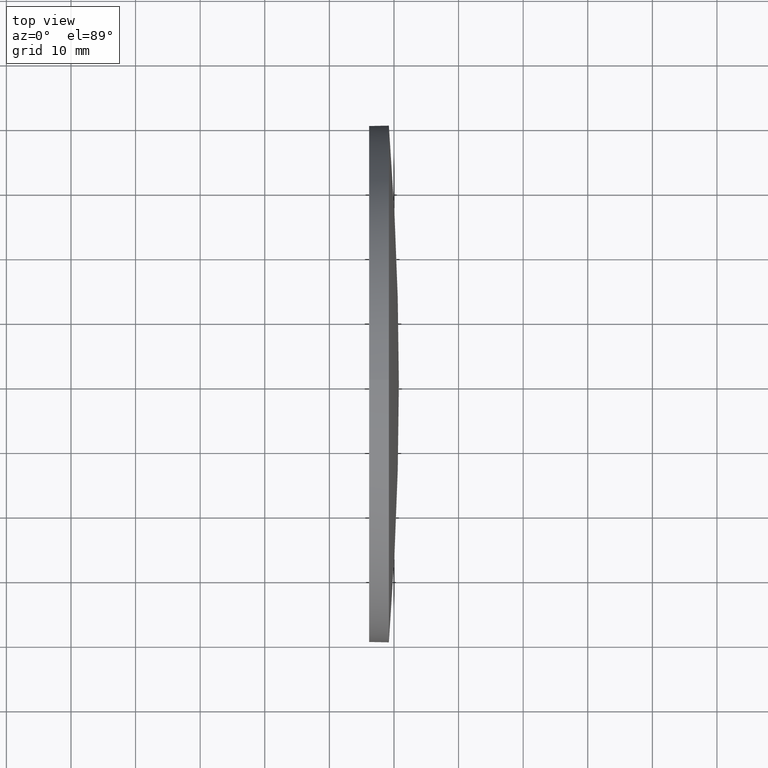
[diagram: clean part render]
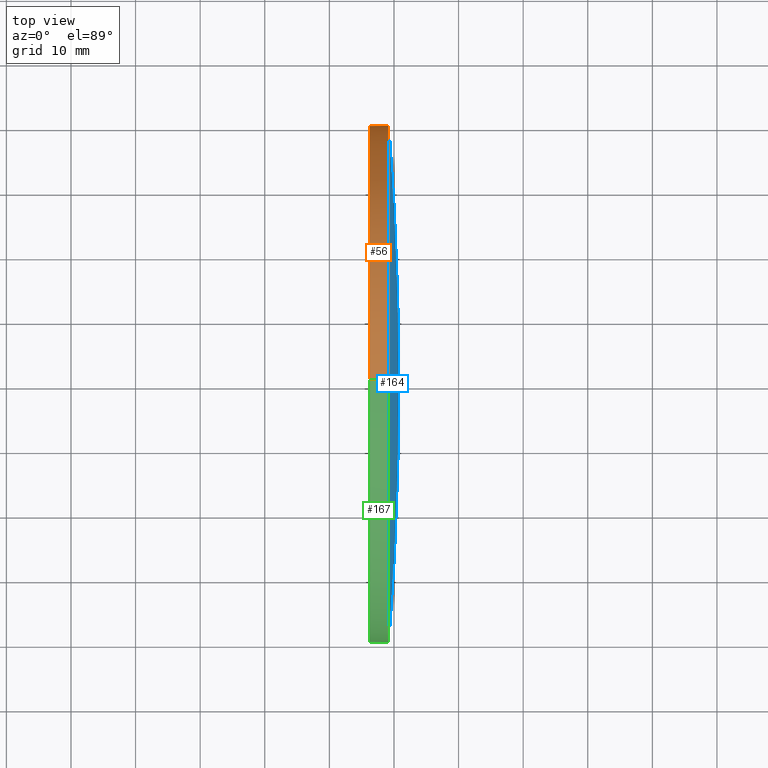
[diagram: same view with three faces highlighted in distinct colors, each labeled with its STEP entity id]
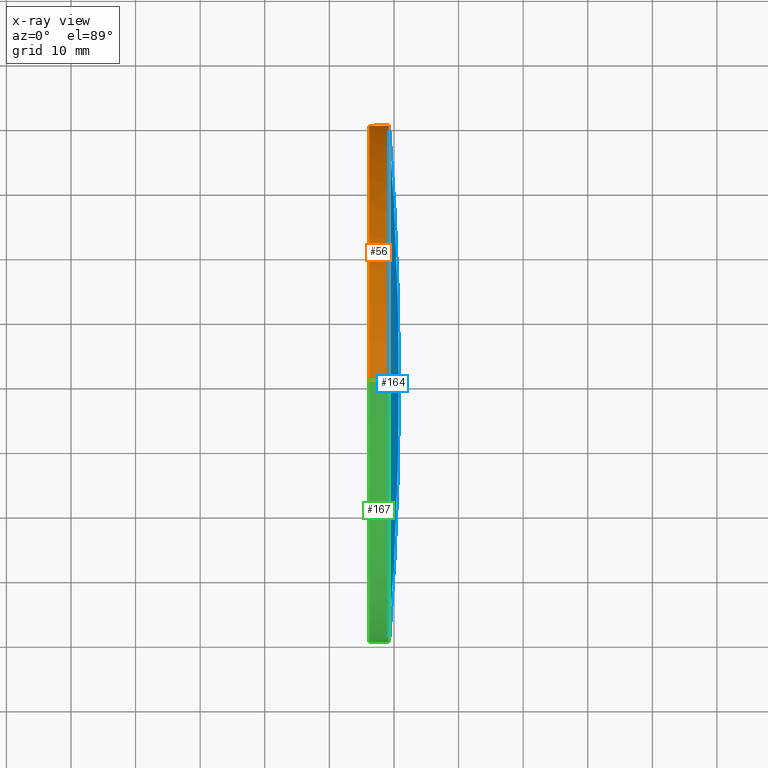
[diagram: x-ray of the same camera — body ghosted, the three highlighted faces saturated]
A machine part, top view with three faces highlighted in distinct colors.
The next image is the same camera in x-ray (body ghosted, the three faces saturated) — at least one of them is partly hidden behind the body in this view.
Their STEP definitions:

[orange] entity #56 — the highlighted cylindrical surface (partial cylindrical patch) has radius 40 mm, axis along (-1, -0, -0).
#5 = LINE ( 'NONE', #100, #146 ) ;
#10 = CARTESIAN_POINT ( 'NONE',  ( 217.3311486608872700, 130.0418907599245100, 40.00000000000000700 ) ) ;
#12 = ORIENTED_EDGE ( 'NONE', *, *, #96, .F. ) ;
#14 = VERTEX_POINT ( 'NONE', #53 ) ;
#23 = DIRECTION ( 'NONE',  ( -1.000000000000000000, -0.0000000000000000000, -0.0000000000000000000 ) ) ;
#25 = LINE ( 'NONE', #10, #90 ) ;
#29 = VERTEX_POINT ( 'NONE', #32 ) ;
#32 = CARTESIAN_POINT ( 'NONE',  ( 236.1561263384603500, 130.0418907599245100, -40.00000000000000700 ) ) ;
#41 = ORIENTED_EDGE ( 'NONE', *, *, #115, .T. ) ;
#47 = CYLINDRICAL_SURFACE ( 'NONE', #107, 40.00000000000000700 ) ;
#48 = CARTESIAN_POINT ( 'NONE',  ( 239.2061263384603600, 130.0418907599245100, -40.00000000000000700 ) ) ;
#51 = AXIS2_PLACEMENT_3D ( 'NONE', #169, #145, #86 ) ;
#53 = CARTESIAN_POINT ( 'NONE',  ( 239.2061263384603600, 130.0418907599245100, 40.00000000000000700 ) ) ;
#56 = ADVANCED_FACE ( 'NONE', ( #58 ), #47, .T. ) ;
#58 = FACE_OUTER_BOUND ( 'NONE', #76, .T. ) ;
#70 = DIRECTION ( 'NONE',  ( 0.0000000000000000000, 0.0000000000000000000, 1.000000000000000000 ) ) ;
#73 = CARTESIAN_POINT ( 'NONE',  ( 239.2061263384603600, 130.0418907599245100, 0.0000000000000000000 ) ) ;
#76 = EDGE_LOOP ( 'NONE', ( #143, #41, #12, #125, #122 ) ) ;
#84 = AXIS2_PLACEMENT_3D ( 'NONE', #117, #134, #97 ) ;
#86 = DIRECTION ( 'NONE',  ( 0.0000000000000000000, 0.0000000000000000000, 1.000000000000000000 ) ) ;
#89 = EDGE_CURVE ( 'NONE', #14, #155, #25, .T. ) ;
#90 = VECTOR ( 'NONE', #182, 1000.000000000000000 ) ;
#96 = EDGE_CURVE ( 'NONE', #155, #29, #173, .T. ) ;
#97 = DIRECTION ( 'NONE',  ( 0.0000000000000000000, 0.0000000000000000000, 1.000000000000000000 ) ) ;
#100 = CARTESIAN_POINT ( 'NONE',  ( 217.3311486608872700, 130.0418907599245100, -40.00000000000000700 ) ) ;
#107 = AXIS2_PLACEMENT_3D ( 'NONE', #144, #163, #70 ) ;
#112 = CIRCLE ( 'NONE', #172, 40.00000000000000700 ) ;
#115 = EDGE_CURVE ( 'NONE', #140, #29, #5, .T. ) ;
#117 = CARTESIAN_POINT ( 'NONE',  ( 236.1561263384603500, 130.0418907599245100, 0.0000000000000000000 ) ) ;
#119 = DIRECTION ( 'NONE',  ( 0.0000000000000000000, 0.0000000000000000000, 1.000000000000000000 ) ) ;
#122 = ORIENTED_EDGE ( 'NONE', *, *, #183, .T. ) ;
#125 = ORIENTED_EDGE ( 'NONE', *, *, #89, .F. ) ;
#131 = CARTESIAN_POINT ( 'NONE',  ( 239.2061263384603400, 170.0418907599244300, 0.0000000000000000000 ) ) ;
#134 = DIRECTION ( 'NONE',  ( -1.000000000000000000, -0.0000000000000000000, -0.0000000000000000000 ) ) ;
#140 = VERTEX_POINT ( 'NONE', #48 ) ;
#143 = ORIENTED_EDGE ( 'NONE', *, *, #162, .T. ) ;
#144 = CARTESIAN_POINT ( 'NONE',  ( 217.3311486608872700, 130.0418907599245100, 0.0000000000000000000 ) ) ;
#145 = DIRECTION ( 'NONE',  ( -1.000000000000000000, -0.0000000000000000000, -0.0000000000000000000 ) ) ;
#146 = VECTOR ( 'NONE', #23, 1000.000000000000000 ) ;
#155 = VERTEX_POINT ( 'NONE', #165 ) ;
#162 = EDGE_CURVE ( 'NONE', #180, #140, #186, .T. ) ;
#163 = DIRECTION ( 'NONE',  ( -1.000000000000000000, -0.0000000000000000000, -0.0000000000000000000 ) ) ;
#165 = CARTESIAN_POINT ( 'NONE',  ( 236.1561263384603500, 130.0418907599245100, 40.00000000000000700 ) ) ;
#169 = CARTESIAN_POINT ( 'NONE',  ( 239.2061263384603600, 130.0418907599245100, 0.0000000000000000000 ) ) ;
#172 = AXIS2_PLACEMENT_3D ( 'NONE', #73, #179, #119 ) ;
#173 = CIRCLE ( 'NONE', #84, 40.00000000000000700 ) ;
#179 = DIRECTION ( 'NONE',  ( -1.000000000000000000, -0.0000000000000000000, -0.0000000000000000000 ) ) ;
#180 = VERTEX_POINT ( 'NONE', #131 ) ;
#182 = DIRECTION ( 'NONE',  ( -1.000000000000000000, -0.0000000000000000000, -0.0000000000000000000 ) ) ;
#183 = EDGE_CURVE ( 'NONE', #14, #180, #112, .T. ) ;
#186 = CIRCLE ( 'NONE', #51, 40.00000000000000700 ) ;

[blue] entity #164 — the highlighted spherical surface has radius 516.904 mm.
#3 = ORIENTED_EDGE ( 'NONE', *, *, #67, .T. ) ;
#4 = EDGE_CURVE ( 'NONE', #39, #54, #95, .T. ) ;
#6 = AXIS2_PLACEMENT_3D ( 'NONE', #116, #161, #141 ) ;
#9 = CARTESIAN_POINT ( 'NONE',  ( -276.1479059196190600, 130.0418907599245100, 0.0000000000000000000 ) ) ;
#13 = CARTESIAN_POINT ( 'NONE',  ( -276.1479059196190600, 130.0418907599245100, 0.0000000000000000000 ) ) ;
#14 = VERTEX_POINT ( 'NONE', #53 ) ;
#16 = FACE_OUTER_BOUND ( 'NONE', #111, .T. ) ;
#24 = AXIS2_PLACEMENT_3D ( 'NONE', #9, #44, #66 ) ;
#30 = EDGE_CURVE ( 'NONE', #54, #14, #63, .T. ) ;
#39 = VERTEX_POINT ( 'NONE', #175 ) ;
#44 = DIRECTION ( 'NONE',  ( 0.0000000000000000000, 1.224646799147353200E-016, -1.000000000000000000 ) ) ;
#53 = CARTESIAN_POINT ( 'NONE',  ( 239.2061263384603600, 130.0418907599245100, 40.00000000000000700 ) ) ;
#54 = VERTEX_POINT ( 'NONE', #114 ) ;
#55 = AXIS2_PLACEMENT_3D ( 'NONE', #61, #168, #133 ) ;
#60 = ORIENTED_EDGE ( 'NONE', *, *, #4, .F. ) ;
#61 = CARTESIAN_POINT ( 'NONE',  ( -276.1479059196190600, 130.0418907599245100, 0.0000000000000000000 ) ) ;
#63 = CIRCLE ( 'NONE', #6, 40.00000000000000700 ) ;
#66 = DIRECTION ( 'NONE',  ( 0.0000000000000000000, 1.000000000000000000, 1.224646799147353200E-016 ) ) ;
#67 = EDGE_CURVE ( 'NONE', #39, #180, #99, .T. ) ;
#73 = CARTESIAN_POINT ( 'NONE',  ( 239.2061263384603600, 130.0418907599245100, 0.0000000000000000000 ) ) ;
#95 = CIRCLE ( 'NONE', #24, 516.9040322580793800 ) ;
#99 = CIRCLE ( 'NONE', #55, 516.9040322580793800 ) ;
#111 = EDGE_LOOP ( 'NONE', ( #60, #3, #154, #171 ) ) ;
#112 = CIRCLE ( 'NONE', #172, 40.00000000000000700 ) ;
#113 = AXIS2_PLACEMENT_3D ( 'NONE', #13, #129, #147 ) ;
#114 = CARTESIAN_POINT ( 'NONE',  ( 239.2061263384603400, 90.04189075992455600, -4.898587196589405900E-015 ) ) ;
#116 = CARTESIAN_POINT ( 'NONE',  ( 239.2061263384603600, 130.0418907599245100, 0.0000000000000000000 ) ) ;
#119 = DIRECTION ( 'NONE',  ( 0.0000000000000000000, 0.0000000000000000000, 1.000000000000000000 ) ) ;
#129 = DIRECTION ( 'NONE',  ( -0.0000000000000000000, 0.0000000000000000000, -1.000000000000000000 ) ) ;
#131 = CARTESIAN_POINT ( 'NONE',  ( 239.2061263384603400, 170.0418907599244300, 0.0000000000000000000 ) ) ;
#133 = DIRECTION ( 'NONE',  ( 1.000000000000000000, 0.0000000000000000000, 0.0000000000000000000 ) ) ;
#141 = DIRECTION ( 'NONE',  ( 0.0000000000000000000, 0.0000000000000000000, 1.000000000000000000 ) ) ;
#147 = DIRECTION ( 'NONE',  ( 0.0000000000000000000, 1.000000000000000000, 0.0000000000000000000 ) ) ;
#154 = ORIENTED_EDGE ( 'NONE', *, *, #183, .F. ) ;
#156 = SPHERICAL_SURFACE ( 'NONE', #113, 516.9040322580793800 ) ;
#161 = DIRECTION ( 'NONE',  ( -1.000000000000000000, -0.0000000000000000000, -0.0000000000000000000 ) ) ;
#164 = ADVANCED_FACE ( 'NONE', ( #16 ), #156, .T. ) ;
#168 = DIRECTION ( 'NONE',  ( -0.0000000000000000000, 0.0000000000000000000, 1.000000000000000000 ) ) ;
#171 = ORIENTED_EDGE ( 'NONE', *, *, #30, .F. ) ;
#172 = AXIS2_PLACEMENT_3D ( 'NONE', #73, #179, #119 ) ;
#175 = CARTESIAN_POINT ( 'NONE',  ( 240.7561263384602600, 130.0418907599245400, 0.0000000000000000000 ) ) ;
#179 = DIRECTION ( 'NONE',  ( -1.000000000000000000, -0.0000000000000000000, -0.0000000000000000000 ) ) ;
#180 = VERTEX_POINT ( 'NONE', #131 ) ;
#183 = EDGE_CURVE ( 'NONE', #14, #180, #112, .T. ) ;

[green] entity #167 — the highlighted cylindrical surface (partial cylindrical patch) has radius 40 mm, axis along (-1, -0, -0).
#5 = LINE ( 'NONE', #100, #146 ) ;
#6 = AXIS2_PLACEMENT_3D ( 'NONE', #116, #161, #141 ) ;
#7 = EDGE_LOOP ( 'NONE', ( #85, #103, #101, #43, #158 ) ) ;
#10 = CARTESIAN_POINT ( 'NONE',  ( 217.3311486608872700, 130.0418907599245100, 40.00000000000000700 ) ) ;
#14 = VERTEX_POINT ( 'NONE', #53 ) ;
#19 = AXIS2_PLACEMENT_3D ( 'NONE', #105, #77, #121 ) ;
#22 = CARTESIAN_POINT ( 'NONE',  ( 217.3311486608872700, 130.0418907599245100, 0.0000000000000000000 ) ) ;
#23 = DIRECTION ( 'NONE',  ( -1.000000000000000000, -0.0000000000000000000, -0.0000000000000000000 ) ) ;
#25 = LINE ( 'NONE', #10, #90 ) ;
#29 = VERTEX_POINT ( 'NONE', #32 ) ;
#30 = EDGE_CURVE ( 'NONE', #54, #14, #63, .T. ) ;
#32 = CARTESIAN_POINT ( 'NONE',  ( 236.1561263384603500, 130.0418907599245100, -40.00000000000000700 ) ) ;
#42 = CIRCLE ( 'NONE', #19, 40.00000000000000700 ) ;
#43 = ORIENTED_EDGE ( 'NONE', *, *, #89, .T. ) ;
#46 = DIRECTION ( 'NONE',  ( -1.000000000000000000, -0.0000000000000000000, -0.0000000000000000000 ) ) ;
#48 = CARTESIAN_POINT ( 'NONE',  ( 239.2061263384603600, 130.0418907599245100, -40.00000000000000700 ) ) ;
#50 = AXIS2_PLACEMENT_3D ( 'NONE', #127, #142, #71 ) ;
#53 = CARTESIAN_POINT ( 'NONE',  ( 239.2061263384603600, 130.0418907599245100, 40.00000000000000700 ) ) ;
#54 = VERTEX_POINT ( 'NONE', #114 ) ;
#59 = DIRECTION ( 'NONE',  ( 0.0000000000000000000, 0.0000000000000000000, 1.000000000000000000 ) ) ;
#62 = EDGE_CURVE ( 'NONE', #29, #155, #128, .T. ) ;
#63 = CIRCLE ( 'NONE', #6, 40.00000000000000700 ) ;
#71 = DIRECTION ( 'NONE',  ( 0.0000000000000000000, 0.0000000000000000000, 1.000000000000000000 ) ) ;
#77 = DIRECTION ( 'NONE',  ( -1.000000000000000000, -0.0000000000000000000, -0.0000000000000000000 ) ) ;
#85 = ORIENTED_EDGE ( 'NONE', *, *, #115, .F. ) ;
#89 = EDGE_CURVE ( 'NONE', #14, #155, #25, .T. ) ;
#90 = VECTOR ( 'NONE', #182, 1000.000000000000000 ) ;
#100 = CARTESIAN_POINT ( 'NONE',  ( 217.3311486608872700, 130.0418907599245100, -40.00000000000000700 ) ) ;
#101 = ORIENTED_EDGE ( 'NONE', *, *, #30, .T. ) ;
#103 = ORIENTED_EDGE ( 'NONE', *, *, #123, .T. ) ;
#105 = CARTESIAN_POINT ( 'NONE',  ( 239.2061263384603600, 130.0418907599245100, 0.0000000000000000000 ) ) ;
#108 = FACE_OUTER_BOUND ( 'NONE', #7, .T. ) ;
#114 = CARTESIAN_POINT ( 'NONE',  ( 239.2061263384603400, 90.04189075992455600, -4.898587196589405900E-015 ) ) ;
#115 = EDGE_CURVE ( 'NONE', #140, #29, #5, .T. ) ;
#116 = CARTESIAN_POINT ( 'NONE',  ( 239.2061263384603600, 130.0418907599245100, 0.0000000000000000000 ) ) ;
#121 = DIRECTION ( 'NONE',  ( 0.0000000000000000000, 0.0000000000000000000, 1.000000000000000000 ) ) ;
#123 = EDGE_CURVE ( 'NONE', #140, #54, #42, .T. ) ;
#127 = CARTESIAN_POINT ( 'NONE',  ( 236.1561263384603500, 130.0418907599245100, 0.0000000000000000000 ) ) ;
#128 = CIRCLE ( 'NONE', #50, 40.00000000000000700 ) ;
#140 = VERTEX_POINT ( 'NONE', #48 ) ;
#141 = DIRECTION ( 'NONE',  ( 0.0000000000000000000, 0.0000000000000000000, 1.000000000000000000 ) ) ;
#142 = DIRECTION ( 'NONE',  ( -1.000000000000000000, -0.0000000000000000000, -0.0000000000000000000 ) ) ;
#146 = VECTOR ( 'NONE', #23, 1000.000000000000000 ) ;
#155 = VERTEX_POINT ( 'NONE', #165 ) ;
#158 = ORIENTED_EDGE ( 'NONE', *, *, #62, .F. ) ;
#161 = DIRECTION ( 'NONE',  ( -1.000000000000000000, -0.0000000000000000000, -0.0000000000000000000 ) ) ;
#165 = CARTESIAN_POINT ( 'NONE',  ( 236.1561263384603500, 130.0418907599245100, 40.00000000000000700 ) ) ;
#166 = AXIS2_PLACEMENT_3D ( 'NONE', #22, #46, #59 ) ;
#167 = ADVANCED_FACE ( 'NONE', ( #108 ), #176, .T. ) ;
#176 = CYLINDRICAL_SURFACE ( 'NONE', #166, 40.00000000000000700 ) ;
#182 = DIRECTION ( 'NONE',  ( -1.000000000000000000, -0.0000000000000000000, -0.0000000000000000000 ) ) ;